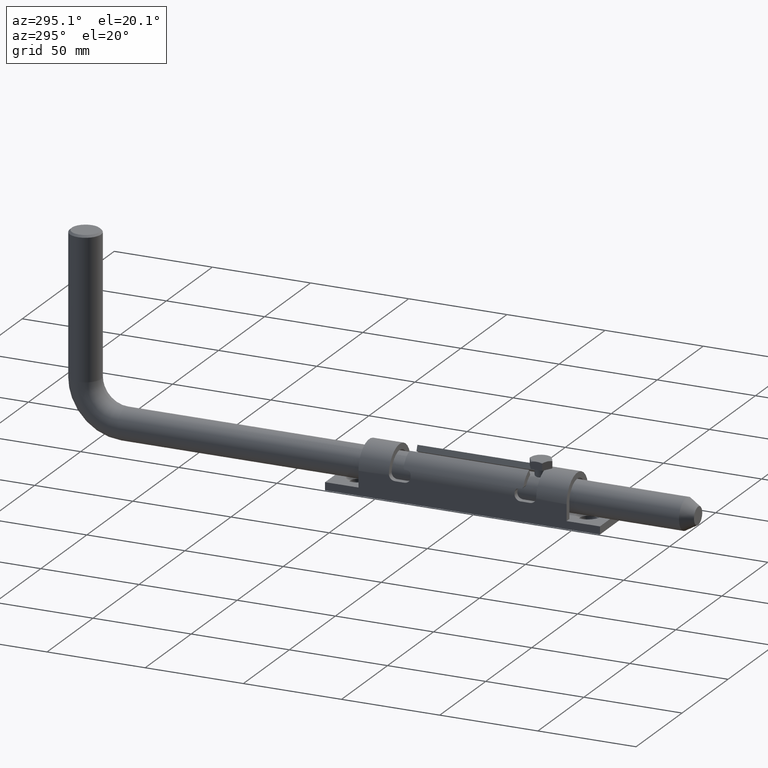
[diagram: clean part render]
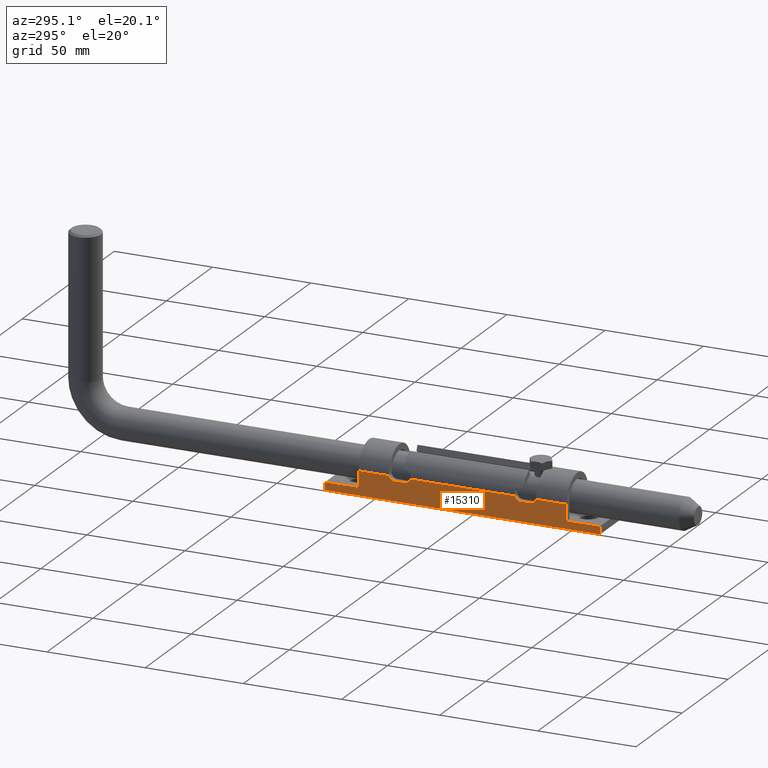
[diagram: same view with one face highlighted and labeled with its STEP entity id]
A machine part, auxiliary view. The second image highlights one B-rep face of the part: STEP entity #15310.
In plain terms, the highlighted planar face has unit normal (1, 0, 0).
Its self-contained STEP definition (entity closure, byte-faithful):
#240 = EDGE_CURVE ( 'NONE', #10487, #7801, #1024, .T. ) ;
#250 = DIRECTION ( 'NONE',  ( 1.000000000000000000, 1.239088197126290817E-16, -0.000000000000000000 ) ) ;
#327 = DIRECTION ( 'NONE',  ( 1.000000000000000000, 1.239088197126290817E-16, -0.000000000000000000 ) ) ;
#346 = LINE ( 'NONE', #14056, #4266 ) ;
#400 = EDGE_CURVE ( 'NONE', #3669, #2246, #346, .T. ) ;
#573 = LINE ( 'NONE', #5551, #4257 ) ;
#697 = DIRECTION ( 'NONE',  ( 0.000000000000000000, -1.000000000000000000, 0.000000000000000000 ) ) ;
#883 = EDGE_LOOP ( 'NONE', ( #13897, #15266, #14542, #15119, #2104, #6505, #2785, #14147, #3686, #8871, #4865, #10668, #7791, #15343, #4039, #6945 ) ) ;
#1003 = CIRCLE ( 'NONE', #7224, 3.000000000000002665 ) ;
#1024 = CIRCLE ( 'NONE', #8035, 2.999999999999999112 ) ;
#1162 = CARTESIAN_POINT ( 'NONE',  ( -11.75000000000001066, 53.00000000000000000, 10.25000000000000888 ) ) ;
#1297 = EDGE_CURVE ( 'NONE', #1981, #4531, #1003, .T. ) ;
#1404 = CIRCLE ( 'NONE', #6306, 3.000000000000002665 ) ;
#1611 = EDGE_CURVE ( 'NONE', #17815, #17599, #1404, .T. ) ;
#1972 = LINE ( 'NONE', #5470, #11525 ) ;
#1981 = VERTEX_POINT ( 'NONE', #10920 ) ;
#2104 = ORIENTED_EDGE ( 'NONE', *, *, #5249, .F. ) ;
#2153 = VERTEX_POINT ( 'NONE', #4578 ) ;
#2246 = VERTEX_POINT ( 'NONE', #6138 ) ;
#2304 = CARTESIAN_POINT ( 'NONE',  ( -11.75000000000000888, 70.00000000000000000, 2.000000000000001776 ) ) ;
#2322 = DIRECTION ( 'NONE',  ( -0.000000000000000000, -1.000000000000000000, -0.000000000000000000 ) ) ;
#2416 = VECTOR ( 'NONE', #6976, 1000.000000000000000 ) ;
#2501 = DIRECTION ( 'NONE',  ( -1.416100796715759877E-16, -0.000000000000000000, 1.000000000000000000 ) ) ;
#2785 = ORIENTED_EDGE ( 'NONE', *, *, #16626, .T. ) ;
#2928 = CARTESIAN_POINT ( 'NONE',  ( -11.74999999999999289, -52.99999999999999289, 2.000000000000001776 ) ) ;
#3374 = CARTESIAN_POINT ( 'NONE',  ( -11.75000000000001066, 37.50000000000000000, 8.000000000000000000 ) ) ;
#3400 = LINE ( 'NONE', #16291, #8593 ) ;
#3537 = DIRECTION ( 'NONE',  ( 1.000000000000000000, 1.239088197126290817E-16, -0.000000000000000000 ) ) ;
#3669 = VERTEX_POINT ( 'NONE', #5210 ) ;
#3686 = ORIENTED_EDGE ( 'NONE', *, *, #6005, .F. ) ;
#3768 = LINE ( 'NONE', #3374, #14247 ) ;
#4039 = ORIENTED_EDGE ( 'NONE', *, *, #12472, .F. ) ;
#4055 = DIRECTION ( 'NONE',  ( 0.000000000000000000, 1.000000000000000000, 0.000000000000000000 ) ) ;
#4257 = VECTOR ( 'NONE', #4055, 1000.000000000000000 ) ;
#4266 = VECTOR ( 'NONE', #9664, 1000.000000000000000 ) ;
#4325 = AXIS2_PLACEMENT_3D ( 'NONE', #17028, #250, #4516 ) ;
#4483 = VERTEX_POINT ( 'NONE', #15691 ) ;
#4516 = DIRECTION ( 'NONE',  ( 0.000000000000000000, 1.000000000000000000, 0.000000000000000000 ) ) ;
#4531 = VERTEX_POINT ( 'NONE', #10313 ) ;
#4534 = LINE ( 'NONE', #10851, #13609 ) ;
#4578 = CARTESIAN_POINT ( 'NONE',  ( -11.75000000000001066, -26.59526249034443168, 10.25000000000000888 ) ) ;
#4646 = DIRECTION ( 'NONE',  ( -1.416100796715759877E-16, -0.000000000000000000, 1.000000000000000000 ) ) ;
#4704 = VECTOR ( 'NONE', #15013, 1000.000000000000000 ) ;
#4747 = DIRECTION ( 'NONE',  ( 0.000000000000000000, 1.000000000000000000, 0.000000000000000000 ) ) ;
#4844 = VECTOR ( 'NONE', #4646, 1000.000000000000000 ) ;
#4865 = ORIENTED_EDGE ( 'NONE', *, *, #8639, .F. ) ;
#5136 = LINE ( 'NONE', #1162, #4704 ) ;
#5210 = CARTESIAN_POINT ( 'NONE',  ( -11.75000000000000888, 70.00000000000000000, 2.000000000000001776 ) ) ;
#5249 = EDGE_CURVE ( 'NONE', #3669, #6884, #13365, .T. ) ;
#5470 = CARTESIAN_POINT ( 'NONE',  ( -11.74999999999999112, -70.00000000000000000, 2.000000000000001776 ) ) ;
#5551 = CARTESIAN_POINT ( 'NONE',  ( -11.75000000000001066, -37.50000000000000000, 8.000000000000000000 ) ) ;
#5763 = DIRECTION ( 'NONE',  ( 1.000000000000000000, 1.239088197126290817E-16, -0.000000000000000000 ) ) ;
#6005 = EDGE_CURVE ( 'NONE', #16690, #4483, #7181, .T. ) ;
#6138 = CARTESIAN_POINT ( 'NONE',  ( -11.75000000000000888, 70.00000000000000000, -2.000000000000001776 ) ) ;
#6306 = AXIS2_PLACEMENT_3D ( 'NONE', #15984, #3537, #4747 ) ;
#6498 = CARTESIAN_POINT ( 'NONE',  ( -11.75000000000001066, 53.00000000000000000, 10.25000000000000888 ) ) ;
#6505 = ORIENTED_EDGE ( 'NONE', *, *, #400, .T. ) ;
#6759 = LINE ( 'NONE', #15761, #4844 ) ;
#6884 = VERTEX_POINT ( 'NONE', #14454 ) ;
#6945 = ORIENTED_EDGE ( 'NONE', *, *, #240, .T. ) ;
#6976 = DIRECTION ( 'NONE',  ( -0.000000000000000000, -1.000000000000000000, -0.000000000000000000 ) ) ;
#7042 = CARTESIAN_POINT ( 'NONE',  ( -11.75000000000001066, -34.49999999999999289, 8.000000000000000000 ) ) ;
#7181 = LINE ( 'NONE', #2304, #13556 ) ;
#7224 = AXIS2_PLACEMENT_3D ( 'NONE', #15369, #16775, #11216 ) ;
#7720 = EDGE_CURVE ( 'NONE', #9368, #4531, #3400, .T. ) ;
#7791 = ORIENTED_EDGE ( 'NONE', *, *, #14239, .T. ) ;
#7801 = VERTEX_POINT ( 'NONE', #14006 ) ;
#8035 = AXIS2_PLACEMENT_3D ( 'NONE', #11348, #5763, #9813 ) ;
#8191 = CARTESIAN_POINT ( 'NONE',  ( -11.75000000000000888, 70.00000000000000000, -2.000000000000001776 ) ) ;
#8265 = DIRECTION ( 'NONE',  ( 1.239088197126290570E-16, -1.000000000000000000, 0.000000000000000000 ) ) ;
#8593 = VECTOR ( 'NONE', #2322, 1000.000000000000000 ) ;
#8639 = EDGE_CURVE ( 'NONE', #17815, #17249, #10892, .T. ) ;
#8659 = EDGE_CURVE ( 'NONE', #4483, #11304, #1972, .T. ) ;
#8743 = EDGE_CURVE ( 'NONE', #12180, #2153, #10999, .T. ) ;
#8871 = ORIENTED_EDGE ( 'NONE', *, *, #10837, .T. ) ;
#9027 = VECTOR ( 'NONE', #13656, 1000.000000000000000 ) ;
#9368 = VERTEX_POINT ( 'NONE', #6498 ) ;
#9624 = CARTESIAN_POINT ( 'NONE',  ( -11.75000000000000888, 70.00000000000000000, 2.000000000000001776 ) ) ;
#9664 = DIRECTION ( 'NONE',  ( -0.000000000000000000, -0.000000000000000000, -1.000000000000000000 ) ) ;
#9692 = FACE_OUTER_BOUND ( 'NONE', #883, .T. ) ;
#9813 = DIRECTION ( 'NONE',  ( 0.000000000000000000, 1.000000000000000000, 0.000000000000000000 ) ) ;
#9933 = CARTESIAN_POINT ( 'NONE',  ( -11.74999999999999112, -70.00000000000000000, -2.000000000000001776 ) ) ;
#10313 = CARTESIAN_POINT ( 'NONE',  ( -11.75000000000001066, 37.40473750965556121, 10.25000000000000888 ) ) ;
#10487 = VERTEX_POINT ( 'NONE', #10585 ) ;
#10585 = CARTESIAN_POINT ( 'NONE',  ( -11.75000000000001066, 26.59526249034443524, 10.25000000000000888 ) ) ;
#10624 = CARTESIAN_POINT ( 'NONE',  ( -11.75000000000001066, -37.40473750965555411, 10.25000000000000888 ) ) ;
#10668 = ORIENTED_EDGE ( 'NONE', *, *, #1611, .T. ) ;
#10837 = EDGE_CURVE ( 'NONE', #16690, #17249, #6759, .T. ) ;
#10851 = CARTESIAN_POINT ( 'NONE',  ( -11.75000000000001066, 53.00000000000000000, 10.25000000000000888 ) ) ;
#10892 = LINE ( 'NONE', #11217, #2416 ) ;
#10920 = CARTESIAN_POINT ( 'NONE',  ( -11.75000000000001066, 34.49999999999999289, 8.000000000000000000 ) ) ;
#10999 = CIRCLE ( 'NONE', #4325, 2.999999999999999112 ) ;
#11118 = EDGE_CURVE ( 'NONE', #6884, #9368, #4534, .T. ) ;
#11216 = DIRECTION ( 'NONE',  ( 0.000000000000000000, 1.000000000000000000, 0.000000000000000000 ) ) ;
#11217 = CARTESIAN_POINT ( 'NONE',  ( -11.75000000000001066, 53.00000000000000000, 10.25000000000000888 ) ) ;
#11304 = VERTEX_POINT ( 'NONE', #9933 ) ;
#11348 = CARTESIAN_POINT ( 'NONE',  ( -11.75000000000000355, 29.50000000000000355, 10.99999999999999645 ) ) ;
#11525 = VECTOR ( 'NONE', #15250, 1000.000000000000000 ) ;
#11541 = AXIS2_PLACEMENT_3D ( 'NONE', #15655, #327, #15522 ) ;
#12107 = LINE ( 'NONE', #8191, #9027 ) ;
#12180 = VERTEX_POINT ( 'NONE', #17344 ) ;
#12472 = EDGE_CURVE ( 'NONE', #10487, #2153, #5136, .T. ) ;
#12716 = PLANE ( 'NONE',  #11541 ) ;
#13365 = LINE ( 'NONE', #9624, #16604 ) ;
#13463 = DIRECTION ( 'NONE',  ( 1.239088197126290570E-16, -1.000000000000000000, 0.000000000000000000 ) ) ;
#13556 = VECTOR ( 'NONE', #13463, 1000.000000000000000 ) ;
#13609 = VECTOR ( 'NONE', #2501, 1000.000000000000000 ) ;
#13656 = DIRECTION ( 'NONE',  ( 1.239088197126290570E-16, -1.000000000000000000, 0.000000000000000000 ) ) ;
#13897 = ORIENTED_EDGE ( 'NONE', *, *, #17728, .F. ) ;
#14006 = CARTESIAN_POINT ( 'NONE',  ( -11.75000000000001066, 29.50000000000000355, 8.000000000000000000 ) ) ;
#14056 = CARTESIAN_POINT ( 'NONE',  ( -11.75000000000000888, 70.00000000000000000, 2.000000000000001776 ) ) ;
#14147 = ORIENTED_EDGE ( 'NONE', *, *, #8659, .F. ) ;
#14239 = EDGE_CURVE ( 'NONE', #17599, #12180, #573, .T. ) ;
#14247 = VECTOR ( 'NONE', #697, 1000.000000000000000 ) ;
#14454 = CARTESIAN_POINT ( 'NONE',  ( -11.75000000000000888, 53.00000000000000000, 2.000000000000001776 ) ) ;
#14542 = ORIENTED_EDGE ( 'NONE', *, *, #7720, .F. ) ;
#15013 = DIRECTION ( 'NONE',  ( -0.000000000000000000, -1.000000000000000000, -0.000000000000000000 ) ) ;
#15119 = ORIENTED_EDGE ( 'NONE', *, *, #11118, .F. ) ;
#15250 = DIRECTION ( 'NONE',  ( -0.000000000000000000, -0.000000000000000000, -1.000000000000000000 ) ) ;
#15266 = ORIENTED_EDGE ( 'NONE', *, *, #1297, .T. ) ;
#15310 = ADVANCED_FACE ( 'NONE', ( #9692 ), #12716, .F. ) ;
#15343 = ORIENTED_EDGE ( 'NONE', *, *, #8743, .T. ) ;
#15369 = CARTESIAN_POINT ( 'NONE',  ( -11.75000000000000355, 34.49999999999999289, 10.99999999999999645 ) ) ;
#15522 = DIRECTION ( 'NONE',  ( -1.239088197126290817E-16, 1.000000000000000000, 0.000000000000000000 ) ) ;
#15655 = CARTESIAN_POINT ( 'NONE',  ( -11.75000000000000888, 70.00000000000000000, 2.000000000000001776 ) ) ;
#15691 = CARTESIAN_POINT ( 'NONE',  ( -11.74999999999999112, -70.00000000000000000, 2.000000000000001776 ) ) ;
#15761 = CARTESIAN_POINT ( 'NONE',  ( -11.75000000000001066, -53.00000000000000000, 10.25000000000000888 ) ) ;
#15984 = CARTESIAN_POINT ( 'NONE',  ( -11.74999999999999645, -34.49999999999999289, 10.99999999999999645 ) ) ;
#16291 = CARTESIAN_POINT ( 'NONE',  ( -11.75000000000001066, 53.00000000000000000, 10.25000000000000888 ) ) ;
#16604 = VECTOR ( 'NONE', #8265, 1000.000000000000000 ) ;
#16626 = EDGE_CURVE ( 'NONE', #2246, #11304, #12107, .T. ) ;
#16690 = VERTEX_POINT ( 'NONE', #2928 ) ;
#16775 = DIRECTION ( 'NONE',  ( 1.000000000000000000, 1.239088197126290817E-16, -0.000000000000000000 ) ) ;
#17028 = CARTESIAN_POINT ( 'NONE',  ( -11.74999999999999645, -29.50000000000000355, 10.99999999999999645 ) ) ;
#17244 = CARTESIAN_POINT ( 'NONE',  ( -11.75000000000001066, -53.00000000000000000, 10.25000000000000888 ) ) ;
#17249 = VERTEX_POINT ( 'NONE', #17244 ) ;
#17344 = CARTESIAN_POINT ( 'NONE',  ( -11.75000000000001066, -29.50000000000000355, 8.000000000000000000 ) ) ;
#17599 = VERTEX_POINT ( 'NONE', #7042 ) ;
#17728 = EDGE_CURVE ( 'NONE', #1981, #7801, #3768, .T. ) ;
#17815 = VERTEX_POINT ( 'NONE', #10624 ) ;